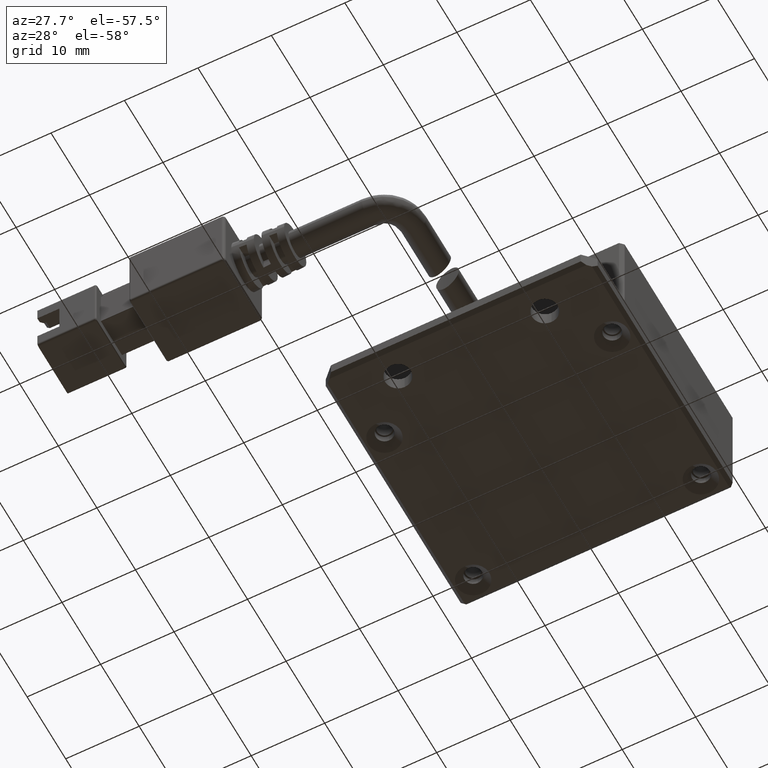
[diagram: clean part render]
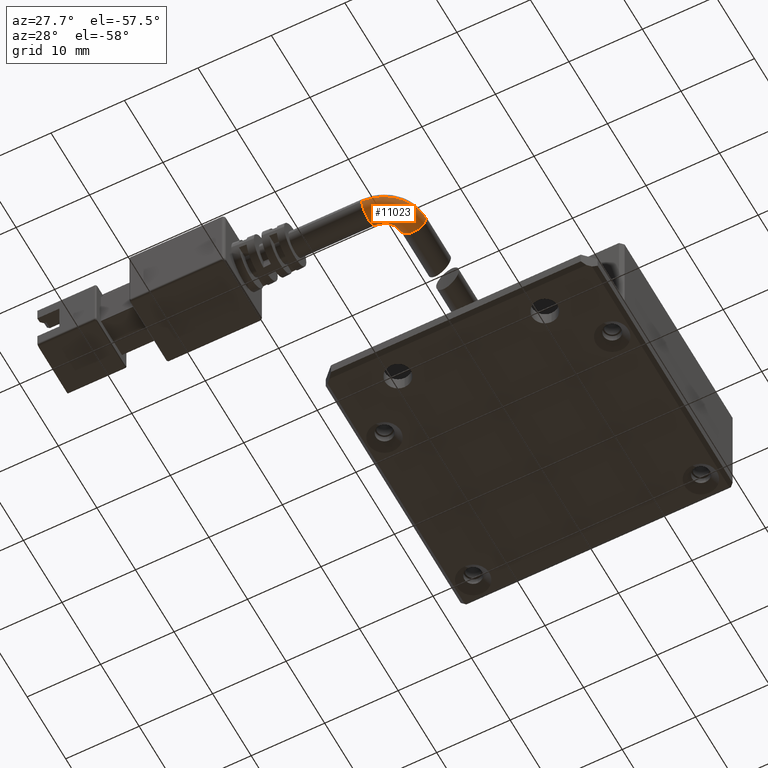
[diagram: same view with one face highlighted and labeled with its STEP entity id]
A machine part, auxiliary view. The second image highlights one B-rep face of the part: STEP entity #11023.
In plain terms, the highlighted face is a freeform B-spline surface patch.
Its self-contained STEP definition (entity closure, byte-faithful):
#134 = DIRECTION ( 'NONE',  ( 0.0000000000000000000, 1.000000000000000000, 0.0000000000000000000 ) ) ;
#552 = EDGE_CURVE ( 'NONE', #12435, #13058, #22903, .T. ) ;
#1060 = CIRCLE ( 'NONE', #8981, 2.249999999999995100 ) ;
#1484 = CARTESIAN_POINT ( 'NONE',  ( 2.220599465444825300, -34.05364642993505000, 3.999999999983630400 ) ) ;
#2254 = CIRCLE ( 'NONE', #24789, 5.749999999999998200 ) ;
#2655 = DIRECTION ( 'NONE',  ( -1.836970198721029700E-016, -1.000000000000000000, 1.232595164407830900E-032 ) ) ;
#3549 = CARTESIAN_POINT ( 'NONE',  ( -0.1611285182004746900, -39.80364642993505700, 0.4999999999836311500 ) ) ;
#3812 = CIRCLE ( 'NONE', #15268, 1.749999999999999800 ) ;
#4117 = DIRECTION ( 'NONE',  ( -5.345529420184392100E-049, 1.232595164407830900E-032, 1.000000000000000000 ) ) ;
#4786 = FACE_OUTER_BOUND ( 'NONE', #6814, .T. ) ;
#5144 = ORIENTED_EDGE ( 'NONE', *, *, #552, .T. ) ;
#5460 = EDGE_CURVE ( 'NONE', #12773, #12435, #1060, .T. ) ;
#5635 = CARTESIAN_POINT ( 'NONE',  ( 2.220599465444825300, -34.05364642993505000, 0.4999999999836312000 ) ) ;
#6169 = AXIS2_PLACEMENT_3D ( 'NONE', #7328, #16465, #9828 ) ;
#6476 = CARTESIAN_POINT ( 'NONE',  ( -1.279400534555176400, -34.05364642993505000, 3.999999999983630400 ) ) ;
#6709 = DIRECTION ( 'NONE',  ( -1.000000000000000000, -6.162975822039154700E-033, -5.345529420184391300E-049 ) ) ;
#6814 = EDGE_LOOP ( 'NONE', ( #12122, #26363, #5144, #15662, #12745 ) ) ;
#6913 = CARTESIAN_POINT ( 'NONE',  ( 0.4705994654448236700, -34.05364642993505000, 2.249999999983630000 ) ) ;
#7328 = CARTESIAN_POINT ( 'NONE',  ( 0.4705994654448236700, -34.05364642993505000, 3.999999999983630400 ) ) ;
#7697 = CARTESIAN_POINT ( 'NONE',  ( -2.211381049894643800, -36.30364642993505000, 0.4999999999836311500 ) ) ;
#8981 = AXIS2_PLACEMENT_3D ( 'NONE', #16418, #4117, #18509 ) ;
#9228 = CIRCLE ( 'NONE', #23200, 1.750000000000001600 ) ;
#9763 = CARTESIAN_POINT ( 'NONE',  ( -1.279400534555178000, -34.05364642993504300, 0.4999999999836312000 ) ) ;
#9828 = DIRECTION ( 'NONE',  ( 1.000000000000000000, 0.0000000000000000000, 0.0000000000000000000 ) ) ;
#10199 = CARTESIAN_POINT ( 'NONE',  ( 2.220599465444822700, -34.05364642993505000, 3.999999999983630400 ) ) ;
#11023 = ADVANCED_FACE ( 'NONE', ( #4786 ), #16988, .T. ) ;
#11828 = CARTESIAN_POINT ( 'NONE',  ( -2.211381049894643800, -36.30364642993505000, 3.999999999983630900 ) ) ;
#12122 = ORIENTED_EDGE ( 'NONE', *, *, #16201, .F. ) ;
#12435 = VERTEX_POINT ( 'NONE', #6476 ) ;
#12490 = DIRECTION ( 'NONE',  ( -5.345529420184392100E-049, 1.232595164407830900E-032, 1.000000000000000000 ) ) ;
#12745 = ORIENTED_EDGE ( 'NONE', *, *, #13315, .F. ) ;
#12773 = VERTEX_POINT ( 'NONE', #16180 ) ;
#13058 = VERTEX_POINT ( 'NONE', #6913 ) ;
#13315 = EDGE_CURVE ( 'NONE', #13983, #21635, #2254, .T. ) ;
#13804 = CARTESIAN_POINT ( 'NONE',  ( 2.220599465444825300, -37.42191844628975200, 3.999999999983630900 ) ) ;
#13899 = CARTESIAN_POINT ( 'NONE',  ( -1.279400534555177800, -34.05364642993504300, 3.999999999983630400 ) ) ;
#13983 = VERTEX_POINT ( 'NONE', #18733 ) ;
#14966 = CARTESIAN_POINT ( 'NONE',  ( 0.4705994654448236700, -34.05364642993505000, 3.999999999983630400 ) ) ;
#15268 = AXIS2_PLACEMENT_3D ( 'NONE', #14966, #2655, #17046 ) ;
#15662 = ORIENTED_EDGE ( 'NONE', *, *, #25046, .T. ) ;
#15864 = CARTESIAN_POINT ( 'NONE',  ( -3.529400534555177300, -39.80364642993505700, 0.4999999999836312000 ) ) ;
#16180 = CARTESIAN_POINT ( 'NONE',  ( -3.529400534555176400, -36.30364642993505700, 3.999999999983630400 ) ) ;
#16201 = EDGE_CURVE ( 'NONE', #12773, #13983, #9228, .T. ) ;
#16418 = CARTESIAN_POINT ( 'NONE',  ( -3.529400534555176400, -34.05364642993505000, 3.999999999983630400 ) ) ;
#16465 = DIRECTION ( 'NONE',  ( -1.836970198721029700E-016, -1.000000000000000000, 1.232595164407830900E-032 ) ) ;
#16988 =( BOUNDED_SURFACE ( )  B_SPLINE_SURFACE ( 3, 3, ( 
 ( #17863, #26040, #13804, #1484 ),
 ( #15864, #3549, #17946, #5635 ),
 ( #19998, #7697, #22028, #9763 ),
 ( #24096, #11828, #26125, #13899 ) ),
 .UNSPECIFIED., .F., .F., .F. ) 
 B_SPLINE_SURFACE_WITH_KNOTS ( ( 4, 4 ),
 ( 4, 4 ),
 ( 0.0000000000000000000, 1.000000000000000000 ),
 ( 0.0000000000000000000, 1.000000000000000000 ),
 .UNSPECIFIED. ) 
 GEOMETRIC_REPRESENTATION_ITEM ( )  RATIONAL_B_SPLINE_SURFACE ( (
 ( 1.000000000000000000, 0.8047378541243649400, 0.8047378541243649400, 1.000000000000000000),
 ( 0.3333333333333333700, 0.2682459513747883500, 0.2682459513747883500, 0.3333333333333333700),
 ( 0.3333333333333333700, 0.2682459513747883500, 0.2682459513747883500, 0.3333333333333333700),
 ( 1.000000000000000000, 0.8047378541243649400, 0.8047378541243649400, 1.000000000000000000) ) ) 
 REPRESENTATION_ITEM ( '' )  SURFACE ( )  );
#17046 = DIRECTION ( 'NONE',  ( 1.000000000000000000, 0.0000000000000000000, 0.0000000000000000000 ) ) ;
#17863 = CARTESIAN_POINT ( 'NONE',  ( -3.529400534555177300, -39.80364642993505000, 3.999999999983630400 ) ) ;
#17946 = CARTESIAN_POINT ( 'NONE',  ( 2.220599465444824900, -37.42191844628975200, 0.4999999999836311500 ) ) ;
#18509 = DIRECTION ( 'NONE',  ( 0.0000000000000000000, 1.000000000000000000, 0.0000000000000000000 ) ) ;
#18733 = CARTESIAN_POINT ( 'NONE',  ( -3.529400534555176400, -39.80364642993505700, 3.999999999983630400 ) ) ;
#19019 = CARTESIAN_POINT ( 'NONE',  ( -3.529400534555176400, -38.05364642993505700, 3.999999999983630400 ) ) ;
#19998 = CARTESIAN_POINT ( 'NONE',  ( -3.529400534555177300, -36.30364642993504300, 0.4999999999836312000 ) ) ;
#21061 = DIRECTION ( 'NONE',  ( 0.0000000000000000000, -1.000000000000000000, 0.0000000000000000000 ) ) ;
#21635 = VERTEX_POINT ( 'NONE', #10199 ) ;
#22028 = CARTESIAN_POINT ( 'NONE',  ( -1.279400534555174000, -35.37166591459558900, 0.4999999999836311500 ) ) ;
#22903 = CIRCLE ( 'NONE', #6169, 1.749999999999999800 ) ;
#23200 = AXIS2_PLACEMENT_3D ( 'NONE', #19019, #6709, #21061 ) ;
#24096 = CARTESIAN_POINT ( 'NONE',  ( -3.529400534555177300, -36.30364642993505000, 3.999999999983630400 ) ) ;
#24709 = CARTESIAN_POINT ( 'NONE',  ( -3.529400534555176400, -34.05364642993505000, 3.999999999983630400 ) ) ;
#24789 = AXIS2_PLACEMENT_3D ( 'NONE', #24709, #12490, #134 ) ;
#25046 = EDGE_CURVE ( 'NONE', #13058, #21635, #3812, .T. ) ;
#26040 = CARTESIAN_POINT ( 'NONE',  ( -0.1611285182004746400, -39.80364642993505000, 3.999999999983630900 ) ) ;
#26125 = CARTESIAN_POINT ( 'NONE',  ( -1.279400534555173800, -35.37166591459558200, 3.999999999983630900 ) ) ;
#26363 = ORIENTED_EDGE ( 'NONE', *, *, #5460, .T. ) ;